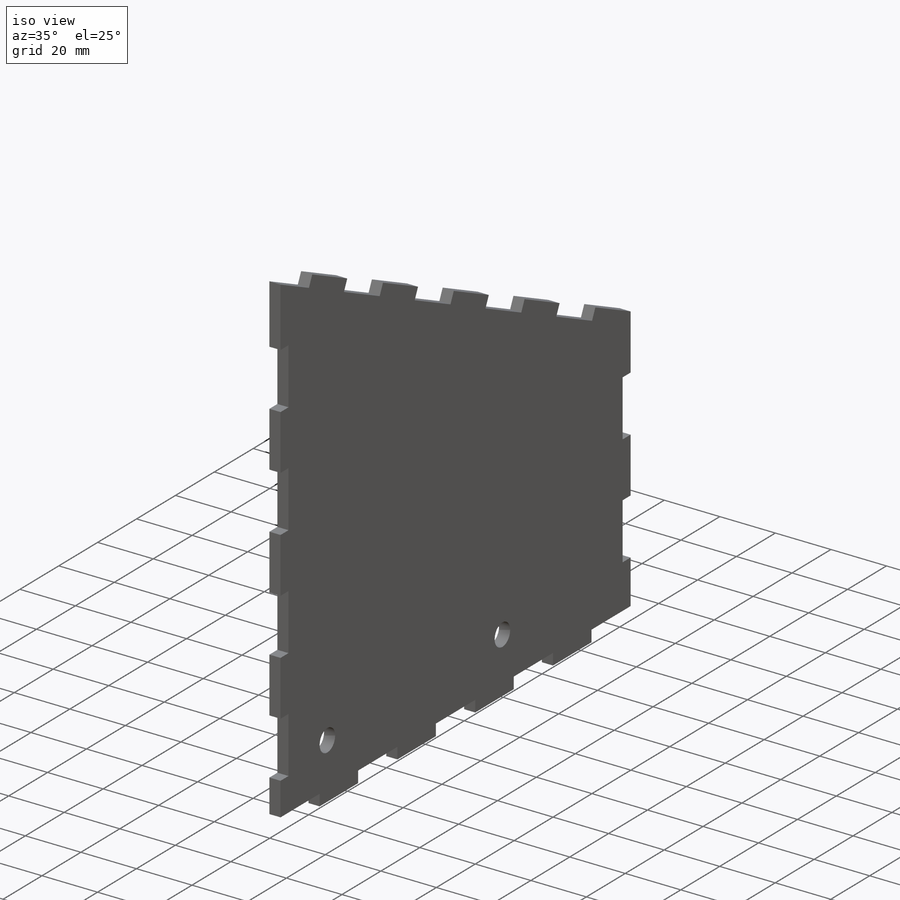
[diagram: iso view]
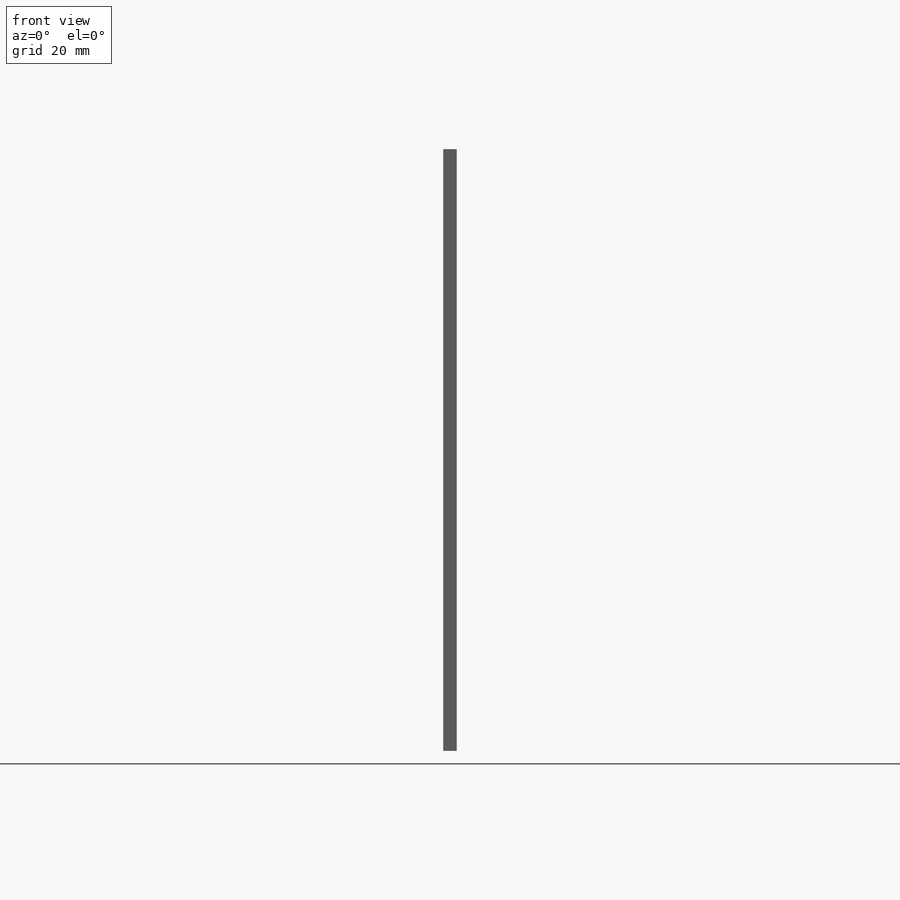
[diagram: front view]
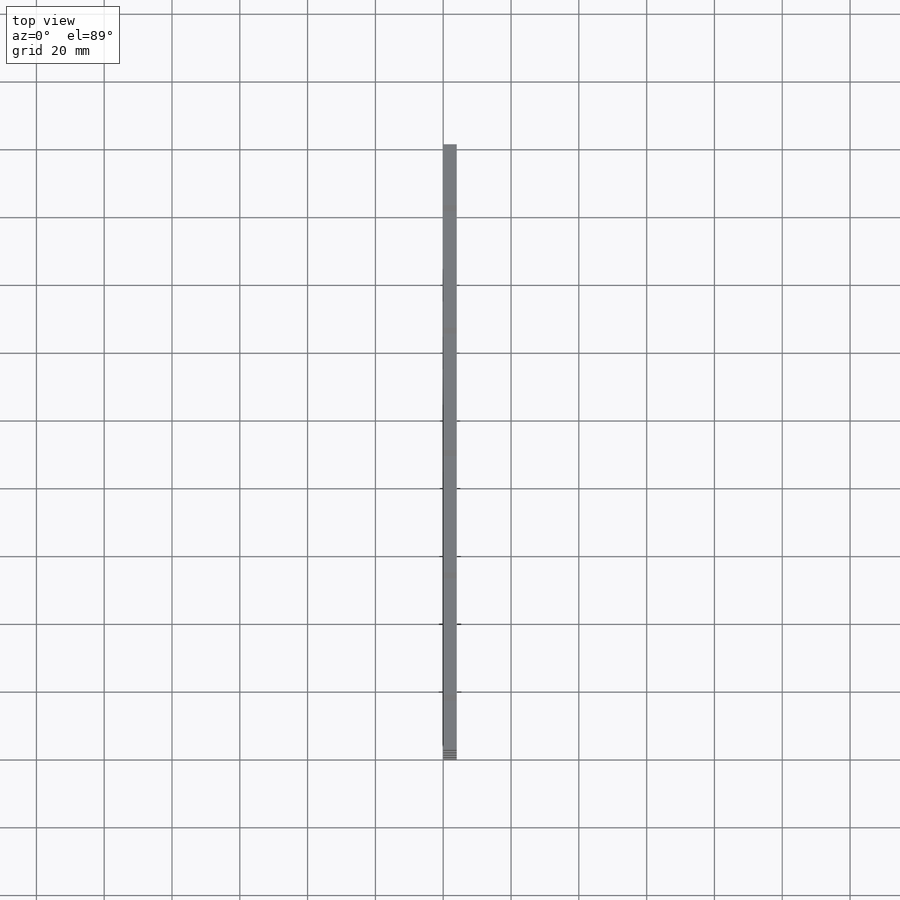
[diagram: top view]
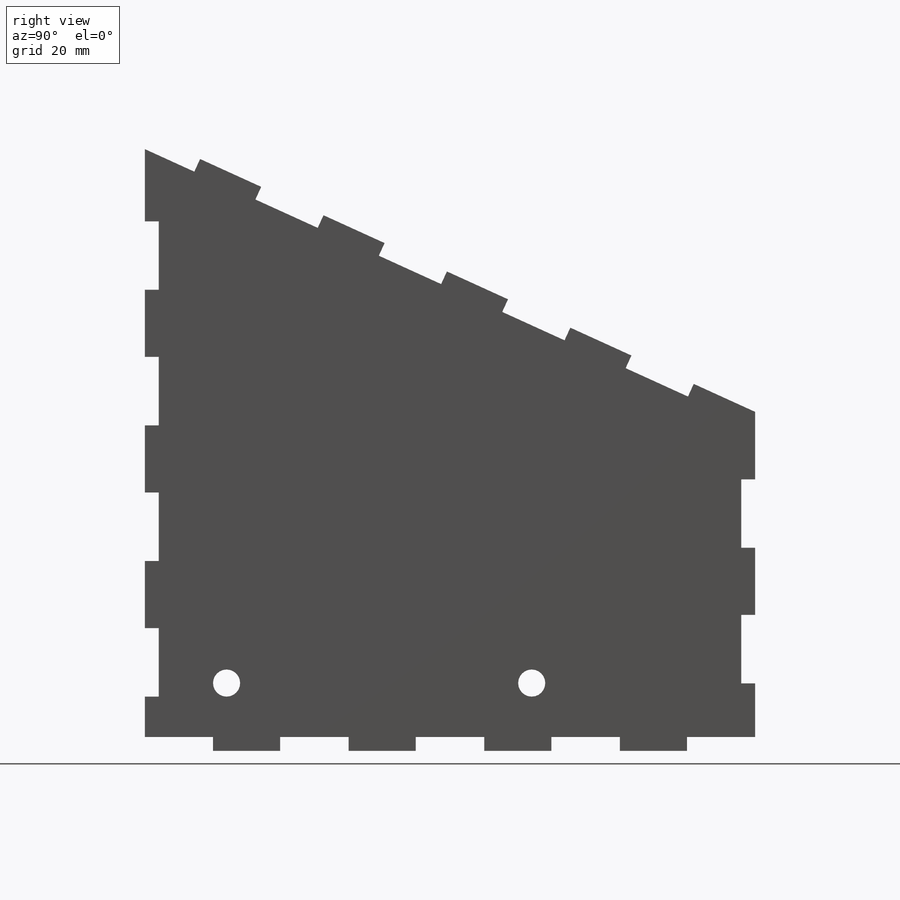
[diagram: right view]
SOLIDWORKS PART (.sldprt)
format: sldprt  version: not decoded by parser v0  size: 295,424 bytes
history: native  units: mm
features: sketch x6, cut_extrude x5, pattern_linear x4, material x1, extrude x1 (+13 scaffold rows collapsed)
feature tree (30):
  scaffold x13  (default folders/planes/origin — collapsed)
  material  "Material <not specified>"
  sketch  "Sketch1"  dims[c1.D1=182.0mm c1.D2=180.0mm c1.D3=100.0mm c1.D4=240.0mm c2.D4=90.0deg c3.D4=240.0mm c4.D4=90.0deg c5.D4=100.0mm c6.D4=~108.434949deg c7.D4=90.0mm c7.D5=120.0mm c7.D6=180.0mm c8.D6=~71.565051deg c9.D6=240.0mm c10.D6=~108.434949deg c11.D6=~47.434165mm]
  extrude  "Boss-Extrude1"  Depth=4mm
  sketch  "Sketch2"  dims[D1=20.2mm D2=4.1mm D3=0.1mm]
  cut_extrude  "Cut-Extrude1"  [1 undecoded]
  pattern_linear  "LPattern1"  Count1=6 Count2=1 Spacing1=40mm Spacing2=10mm
  sketch  "Sketch3"  dims[D1=4.1mm D2=20.2mm D3=11.9mm]
  cut_extrude  "Cut-Extrude2"  Depth=4mm
  pattern_linear  "LPattern2"  Count1=4 Count2=1 Spacing1=40mm Spacing2=10mm
  sketch  "Sketch4"  dims[D1=4.1mm D2=20.2mm D3=19.9mm]
  cut_extrude  "Cut-Extrude3"  Depth=4mm
  pattern_linear  "LPattern3"  Count1=2 Count2=1 Spacing1=40mm Spacing2=10mm
  sketch  "Sketch5"  dims[D1=20.2mm D2=4.1mm D3=19.9mm]
  cut_extrude  "Cut-Extrude4"  Depth=4mm
  pattern_linear  "LPattern4"  Count1=6 Count2=1 Spacing1=40mm Spacing2=10mm
  sketch  "Sketch6"  dims[D3=8.0mm D4=8.0mm D1=110.0mm D2=20.0mm D5=20.0mm D6=20.0mm]
  cut_extrude  "Cut-Extrude5"  [1 undecoded]
decode coverage: 14 of 16 modeling features carry decoded parameters
note: ~ marks probable driven/reference dimensions
note: 2 parameter values undecoded
note: suppression state not decoded; provenance and decode notes live in map.json
